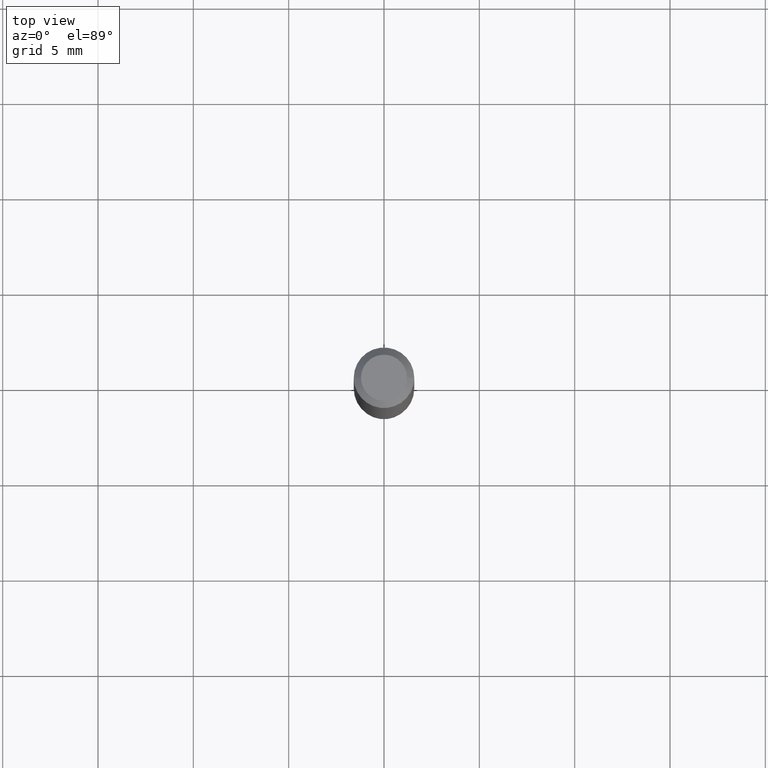
[diagram: clean part render]
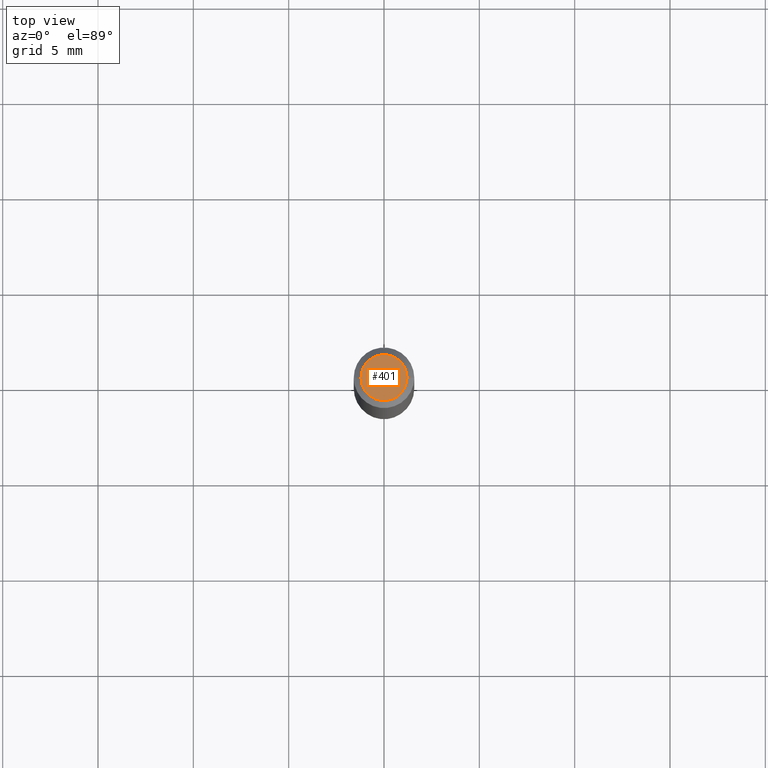
[diagram: same view with one face highlighted and labeled with its STEP entity id]
A machine part, top view. The second image highlights one B-rep face of the part: STEP entity #401.
In plain terms, the highlighted planar face has unit normal (0, -0, -1).
Its self-contained STEP definition (entity closure, byte-faithful):
#32 = CARTESIAN_POINT ( 'NONE',  ( 0.04750000000000000749, -4.035134999187568762E-16, 2.731847993664288856E-16 ) ) ;
#49 = ORIENTED_EDGE ( 'NONE', *, *, #135, .T. ) ;
#53 = CARTESIAN_POINT ( 'NONE',  ( -0.04750000000000000749, 3.578768372314221353E-16, 2.731847993664239060E-16 ) ) ;
#60 = DIRECTION ( 'NONE',  ( 1.000000000000000000, -6.982962677686266711E-15, 4.852736867747365086E-29 ) ) ;
#81 = VERTEX_POINT ( 'NONE', #32 ) ;
#109 = CARTESIAN_POINT ( 'NONE',  ( -6.680649051745406845E-45, 9.538196290434862081E-31, 2.731847993664263218E-16 ) ) ;
#133 = PLANE ( 'NONE',  #458 ) ;
#135 = EDGE_CURVE ( 'NONE', #81, #373, #391, .T. ) ;
#141 = EDGE_CURVE ( 'NONE', #373, #81, #422, .T. ) ;
#169 = ORIENTED_EDGE ( 'NONE', *, *, #141, .T. ) ;
#175 = FACE_OUTER_BOUND ( 'NONE', #452, .T. ) ;
#179 = DIRECTION ( 'NONE',  ( -1.000000000000000000, 6.982962677686265922E-15, -4.876176775795935793E-29 ) ) ;
#267 = AXIS2_PLACEMENT_3D ( 'NONE', #353, #427, #60 ) ;
#294 = DIRECTION ( 'NONE',  ( 2.438088387897960049E-29, -3.491481338843145188E-15, -1.000000000000000000 ) ) ;
#353 = CARTESIAN_POINT ( 'NONE',  ( -6.680649051745406845E-45, 9.538196290434862081E-31, 2.731847993664263218E-16 ) ) ;
#373 = VERTEX_POINT ( 'NONE', #53 ) ;
#388 = DIRECTION ( 'NONE',  ( 1.000000000000000000, -6.982962677686266711E-15, 4.852736867747365086E-29 ) ) ;
#391 = CIRCLE ( 'NONE', #267, 0.04750000000000000749 ) ;
#401 = ADVANCED_FACE ( 'NONE', ( #175 ), #133, .F. ) ;
#419 = CARTESIAN_POINT ( 'NONE',  ( 3.316907271900976589E-16, 0.04750000000000000749, -2.925296391183627249E-17 ) ) ;
#422 = CIRCLE ( 'NONE', #446, 0.04750000000000000749 ) ;
#427 = DIRECTION ( 'NONE',  ( -2.445468806185136597E-29, 3.491481338843145583E-15, 1.000000000000000000 ) ) ;
#446 = AXIS2_PLACEMENT_3D ( 'NONE', #109, #464, #388 ) ;
#452 = EDGE_LOOP ( 'NONE', ( #169, #49 ) ) ;
#458 = AXIS2_PLACEMENT_3D ( 'NONE', #419, #294, #179 ) ;
#464 = DIRECTION ( 'NONE',  ( -2.445468806185136597E-29, 3.491481338843145583E-15, 1.000000000000000000 ) ) ;